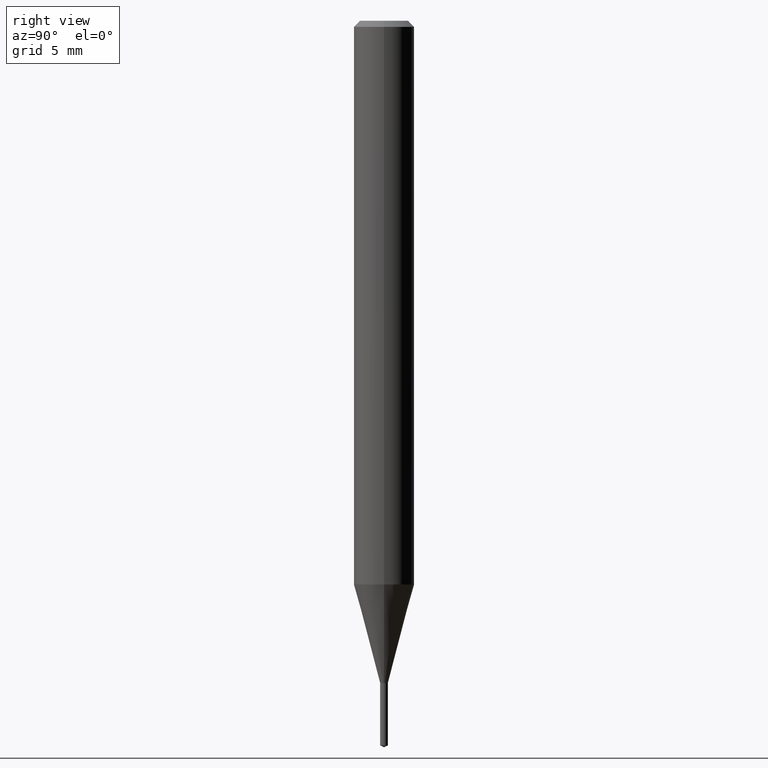
[diagram: clean part render]
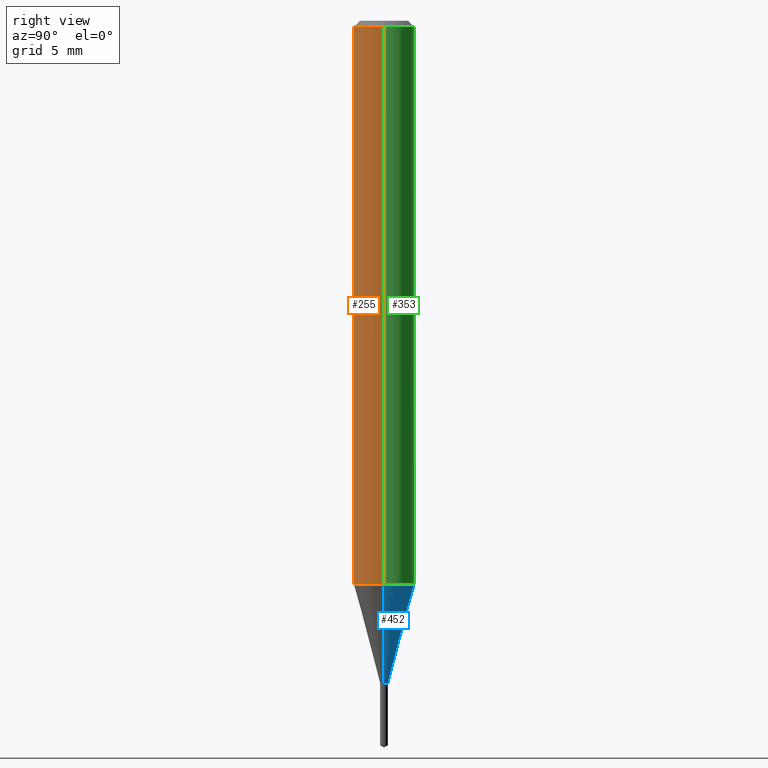
[diagram: same view with three faces highlighted in distinct colors, each labeled with its STEP entity id]
A machine part, right view with three faces highlighted in distinct colors.
Their STEP definitions:

[orange] entity #255 — the highlighted cylindrical surface (edge-blend (fillet) strip) has radius 1.5875 mm, axis along (-0, 0, 1).
#37 = DIRECTION ( 'NONE',  ( -2.445468806185136597E-29, 3.491481338843145583E-15, 1.000000000000000000 ) ) ;
#39 = CARTESIAN_POINT ( 'NONE',  ( 0.000000000000000000, 0.000000000000000000, 0.000000000000000000 ) ) ;
#57 = CARTESIAN_POINT ( 'NONE',  ( 0.06250000000000006939, -4.364351673553921624E-16, 3.047610484872463374E-30 ) ) ;
#64 = AXIS2_PLACEMENT_3D ( 'NONE', #219, #37, #447 ) ;
#67 = CARTESIAN_POINT ( 'NONE',  ( -0.06250000000000000000, -1.609780328190700812E-15, -0.01250000000000008570 ) ) ;
#99 = DIRECTION ( 'NONE',  ( 1.000000000000000000, -6.982962677686266711E-15, 0.000000000000000000 ) ) ;
#116 = ORIENTED_EDGE ( 'NONE', *, *, #458, .T. ) ;
#132 = EDGE_CURVE ( 'NONE', #279, #244, #154, .T. ) ;
#135 = EDGE_CURVE ( 'NONE', #408, #279, #216, .T. ) ;
#148 = CYLINDRICAL_SURFACE ( 'NONE', #384, 0.06250000000000006939 ) ;
#150 = FACE_OUTER_BOUND ( 'NONE', #206, .T. ) ;
#154 = CIRCLE ( 'NONE', #449, 0.06250000000000000000 ) ;
#176 = DIRECTION ( 'NONE',  ( -2.445468806185136597E-29, 3.491481338843145583E-15, 1.000000000000000000 ) ) ;
#197 = ORIENTED_EDGE ( 'NONE', *, *, #135, .F. ) ;
#206 = EDGE_LOOP ( 'NONE', ( #197, #271, #116, #464 ) ) ;
#216 = LINE ( 'NONE', #475, #421 ) ;
#219 = CARTESIAN_POINT ( 'NONE',  ( 2.846533591678647944E-29, -4.064095559345990057E-15, -1.164003230987501691 ) ) ;
#224 = DIRECTION ( 'NONE',  ( -2.445468806185136597E-29, 3.491481338843145583E-15, 1.000000000000000000 ) ) ;
#227 = DIRECTION ( 'NONE',  ( 1.000000000000000000, -6.982962677686266711E-15, 4.876176775795935793E-29 ) ) ;
#244 = VERTEX_POINT ( 'NONE', #330 ) ;
#255 = ADVANCED_FACE ( 'NONE', ( #150 ), #148, .T. ) ;
#271 = ORIENTED_EDGE ( 'NONE', *, *, #282, .T. ) ;
#279 = VERTEX_POINT ( 'NONE', #67 ) ;
#282 = EDGE_CURVE ( 'NONE', #408, #310, #399, .T. ) ;
#285 = CARTESIAN_POINT ( 'NONE',  ( 3.056836007731441853E-31, -4.364351673553962300E-17, -0.01250000000000008570 ) ) ;
#310 = VERTEX_POINT ( 'NONE', #367 ) ;
#330 = CARTESIAN_POINT ( 'NONE',  ( 0.06250000000000000000, -4.800786840909313294E-16, -0.01250000000000008570 ) ) ;
#361 = DIRECTION ( 'NONE',  ( -2.445468806185136877E-29, 3.491481338843145188E-15, 1.000000000000000000 ) ) ;
#366 = VECTOR ( 'NONE', #469, 39.37007874015748143 ) ;
#367 = CARTESIAN_POINT ( 'NONE',  ( 0.06250000000000013878, -4.500530726701381726E-15, -1.164003230987501691 ) ) ;
#384 = AXIS2_PLACEMENT_3D ( 'NONE', #39, #224, #227 ) ;
#399 = CIRCLE ( 'NONE', #64, 0.06250000000000013878 ) ;
#408 = VERTEX_POINT ( 'NONE', #420 ) ;
#420 = CARTESIAN_POINT ( 'NONE',  ( -0.06250000000000013878, -3.620006349495926652E-15, -1.164003230987501691 ) ) ;
#421 = VECTOR ( 'NONE', #361, 39.37007874015748143 ) ;
#447 = DIRECTION ( 'NONE',  ( 1.000000000000000000, -6.982962677686270655E-15, 0.000000000000000000 ) ) ;
#449 = AXIS2_PLACEMENT_3D ( 'NONE', #285, #176, #99 ) ;
#458 = EDGE_CURVE ( 'NONE', #310, #244, #465, .T. ) ;
#464 = ORIENTED_EDGE ( 'NONE', *, *, #132, .F. ) ;
#465 = LINE ( 'NONE', #57, #366 ) ;
#469 = DIRECTION ( 'NONE',  ( -2.445468806185136877E-29, 3.491481338843145188E-15, 1.000000000000000000 ) ) ;
#475 = CARTESIAN_POINT ( 'NONE',  ( -0.06250000000000006939, 4.440892098500631092E-16, -3.074334431409319267E-30 ) ) ;

[blue] entity #452 — the highlighted conical surface has half-angle 15 deg.
#13 = VECTOR ( 'NONE', #23, 39.37007874015748854 ) ;
#23 = DIRECTION ( 'NONE',  ( 0.2588190451025279559, 1.565188264969569508E-15, 0.9659258262890664248 ) ) ;
#27 = EDGE_CURVE ( 'NONE', #158, #310, #257, .T. ) ;
#28 = DIRECTION ( 'NONE',  ( 1.000000000000000000, -6.982962677686211490E-15, 0.000000000000000000 ) ) ;
#59 = DIRECTION ( 'NONE',  ( -2.445468806185136597E-29, 3.491481338843145583E-15, 1.000000000000000000 ) ) ;
#61 = AXIS2_PLACEMENT_3D ( 'NONE', #66, #439, #400 ) ;
#62 = EDGE_CURVE ( 'NONE', #310, #408, #122, .T. ) ;
#66 = CARTESIAN_POINT ( 'NONE',  ( 2.846533591678647944E-29, -4.064095559345990057E-15, -1.164003230987501691 ) ) ;
#87 = ORIENTED_EDGE ( 'NONE', *, *, #164, .T. ) ;
#92 = DIRECTION ( 'NONE',  ( -2.445468806185136597E-29, 3.491481338843145583E-15, 1.000000000000000000 ) ) ;
#103 = EDGE_LOOP ( 'NONE', ( #87, #249, #355, #275 ) ) ;
#106 = VERTEX_POINT ( 'NONE', #218 ) ;
#122 = CIRCLE ( 'NONE', #61, 0.06250000000000013878 ) ;
#123 = DIRECTION ( 'NONE',  ( 1.000000000000000000, -6.982962677686211490E-15, 0.000000000000000000 ) ) ;
#158 = VERTEX_POINT ( 'NONE', #251 ) ;
#164 = EDGE_CURVE ( 'NONE', #158, #106, #187, .T. ) ;
#187 = CIRCLE ( 'NONE', #311, 0.008000000000000000167 ) ;
#188 = VECTOR ( 'NONE', #441, 39.37007874015748854 ) ;
#218 = CARTESIAN_POINT ( 'NONE',  ( -0.008000000000000000167, -4.433027008824534851E-15, -1.367399999999999949 ) ) ;
#249 = ORIENTED_EDGE ( 'NONE', *, *, #322, .T. ) ;
#251 = CARTESIAN_POINT ( 'NONE',  ( 0.008000000000000000167, -4.830115284155606978E-15, -1.367399999999999949 ) ) ;
#254 = AXIS2_PLACEMENT_3D ( 'NONE', #426, #92, #123 ) ;
#257 = LINE ( 'NONE', #432, #13 ) ;
#275 = ORIENTED_EDGE ( 'NONE', *, *, #27, .F. ) ;
#292 = LINE ( 'NONE', #407, #188 ) ;
#310 = VERTEX_POINT ( 'NONE', #367 ) ;
#311 = AXIS2_PLACEMENT_3D ( 'NONE', #395, #59, #28 ) ;
#314 = FACE_OUTER_BOUND ( 'NONE', #103, .T. ) ;
#322 = EDGE_CURVE ( 'NONE', #106, #408, #292, .T. ) ;
#355 = ORIENTED_EDGE ( 'NONE', *, *, #62, .F. ) ;
#367 = CARTESIAN_POINT ( 'NONE',  ( 0.06250000000000013878, -4.500530726701381726E-15, -1.164003230987501691 ) ) ;
#395 = CARTESIAN_POINT ( 'NONE',  ( 3.343934045577555938E-29, -4.774251582734117286E-15, -1.367399999999999949 ) ) ;
#400 = DIRECTION ( 'NONE',  ( 1.000000000000000000, -6.982962677686270655E-15, 0.000000000000000000 ) ) ;
#407 = CARTESIAN_POINT ( 'NONE',  ( -0.008000000000000000167, -4.717408163873309221E-15, -1.367399999999999949 ) ) ;
#408 = VERTEX_POINT ( 'NONE', #420 ) ;
#415 = CONICAL_SURFACE ( 'NONE', #254, 0.008000000000000000167, 0.2617993877991569018 ) ;
#420 = CARTESIAN_POINT ( 'NONE',  ( -0.06250000000000013878, -3.620006349495926652E-15, -1.164003230987501691 ) ) ;
#426 = CARTESIAN_POINT ( 'NONE',  ( 3.343934045577555938E-29, -4.774251582734117286E-15, -1.367399999999999949 ) ) ;
#432 = CARTESIAN_POINT ( 'NONE',  ( 0.008000000000000000167, -4.830115284155606978E-15, -1.367399999999999949 ) ) ;
#439 = DIRECTION ( 'NONE',  ( -2.445468806185136597E-29, 3.491481338843145583E-15, 1.000000000000000000 ) ) ;
#441 = DIRECTION ( 'NONE',  ( -0.2588190451025279559, 5.211531920934590485E-15, 0.9659258262890664248 ) ) ;
#452 = ADVANCED_FACE ( 'NONE', ( #314 ), #415, .T. ) ;

[green] entity #353 — the highlighted cylindrical surface (edge-blend (fillet) strip) has radius 1.5875 mm, axis along (-0, 0, 1).
#10 = CYLINDRICAL_SURFACE ( 'NONE', #359, 0.06250000000000006939 ) ;
#50 = DIRECTION ( 'NONE',  ( -2.445468806185136597E-29, 3.491481338843145583E-15, 1.000000000000000000 ) ) ;
#51 = EDGE_LOOP ( 'NONE', ( #386, #348, #376, #369 ) ) ;
#56 = EDGE_CURVE ( 'NONE', #244, #279, #373, .T. ) ;
#57 = CARTESIAN_POINT ( 'NONE',  ( 0.06250000000000006939, -4.364351673553921624E-16, 3.047610484872463374E-30 ) ) ;
#61 = AXIS2_PLACEMENT_3D ( 'NONE', #66, #439, #400 ) ;
#62 = EDGE_CURVE ( 'NONE', #310, #408, #122, .T. ) ;
#66 = CARTESIAN_POINT ( 'NONE',  ( 2.846533591678647944E-29, -4.064095559345990057E-15, -1.164003230987501691 ) ) ;
#67 = CARTESIAN_POINT ( 'NONE',  ( -0.06250000000000000000, -1.609780328190700812E-15, -0.01250000000000008570 ) ) ;
#122 = CIRCLE ( 'NONE', #61, 0.06250000000000013878 ) ;
#135 = EDGE_CURVE ( 'NONE', #408, #279, #216, .T. ) ;
#216 = LINE ( 'NONE', #475, #421 ) ;
#244 = VERTEX_POINT ( 'NONE', #330 ) ;
#256 = CARTESIAN_POINT ( 'NONE',  ( 3.056836007731441853E-31, -4.364351673553962300E-17, -0.01250000000000008570 ) ) ;
#279 = VERTEX_POINT ( 'NONE', #67 ) ;
#310 = VERTEX_POINT ( 'NONE', #367 ) ;
#330 = CARTESIAN_POINT ( 'NONE',  ( 0.06250000000000000000, -4.800786840909313294E-16, -0.01250000000000008570 ) ) ;
#339 = CARTESIAN_POINT ( 'NONE',  ( 0.000000000000000000, 0.000000000000000000, 0.000000000000000000 ) ) ;
#348 = ORIENTED_EDGE ( 'NONE', *, *, #135, .T. ) ;
#353 = ADVANCED_FACE ( 'NONE', ( #459 ), #10, .T. ) ;
#358 = DIRECTION ( 'NONE',  ( 1.000000000000000000, -6.982962677686266711E-15, 0.000000000000000000 ) ) ;
#359 = AXIS2_PLACEMENT_3D ( 'NONE', #339, #50, #387 ) ;
#361 = DIRECTION ( 'NONE',  ( -2.445468806185136877E-29, 3.491481338843145188E-15, 1.000000000000000000 ) ) ;
#366 = VECTOR ( 'NONE', #469, 39.37007874015748143 ) ;
#367 = CARTESIAN_POINT ( 'NONE',  ( 0.06250000000000013878, -4.500530726701381726E-15, -1.164003230987501691 ) ) ;
#369 = ORIENTED_EDGE ( 'NONE', *, *, #458, .F. ) ;
#373 = CIRCLE ( 'NONE', #485, 0.06250000000000000000 ) ;
#376 = ORIENTED_EDGE ( 'NONE', *, *, #56, .F. ) ;
#386 = ORIENTED_EDGE ( 'NONE', *, *, #62, .T. ) ;
#387 = DIRECTION ( 'NONE',  ( 1.000000000000000000, -6.982962677686266711E-15, 4.876176775795935793E-29 ) ) ;
#400 = DIRECTION ( 'NONE',  ( 1.000000000000000000, -6.982962677686270655E-15, 0.000000000000000000 ) ) ;
#408 = VERTEX_POINT ( 'NONE', #420 ) ;
#420 = CARTESIAN_POINT ( 'NONE',  ( -0.06250000000000013878, -3.620006349495926652E-15, -1.164003230987501691 ) ) ;
#421 = VECTOR ( 'NONE', #361, 39.37007874015748143 ) ;
#439 = DIRECTION ( 'NONE',  ( -2.445468806185136597E-29, 3.491481338843145583E-15, 1.000000000000000000 ) ) ;
#440 = DIRECTION ( 'NONE',  ( -2.445468806185136597E-29, 3.491481338843145583E-15, 1.000000000000000000 ) ) ;
#458 = EDGE_CURVE ( 'NONE', #310, #244, #465, .T. ) ;
#459 = FACE_OUTER_BOUND ( 'NONE', #51, .T. ) ;
#465 = LINE ( 'NONE', #57, #366 ) ;
#469 = DIRECTION ( 'NONE',  ( -2.445468806185136877E-29, 3.491481338843145188E-15, 1.000000000000000000 ) ) ;
#475 = CARTESIAN_POINT ( 'NONE',  ( -0.06250000000000006939, 4.440892098500631092E-16, -3.074334431409319267E-30 ) ) ;
#485 = AXIS2_PLACEMENT_3D ( 'NONE', #256, #440, #358 ) ;